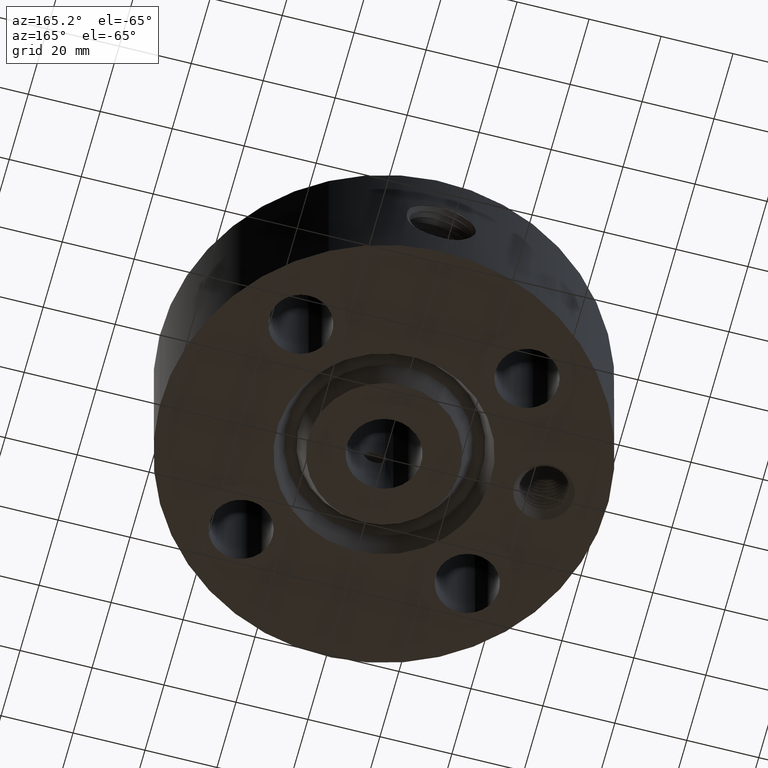
[diagram: clean part render]
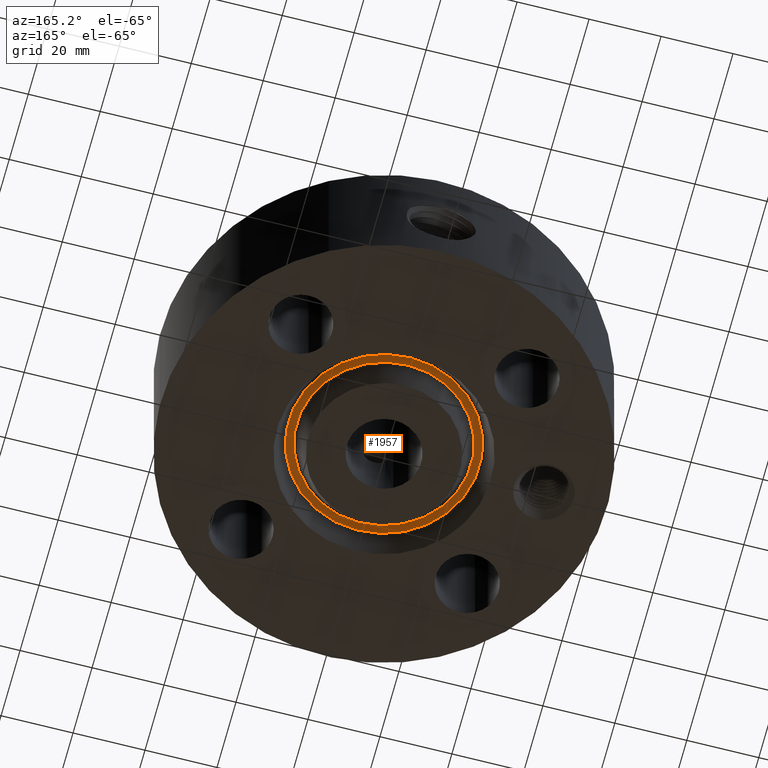
[diagram: same view with one face highlighted and labeled with its STEP entity id]
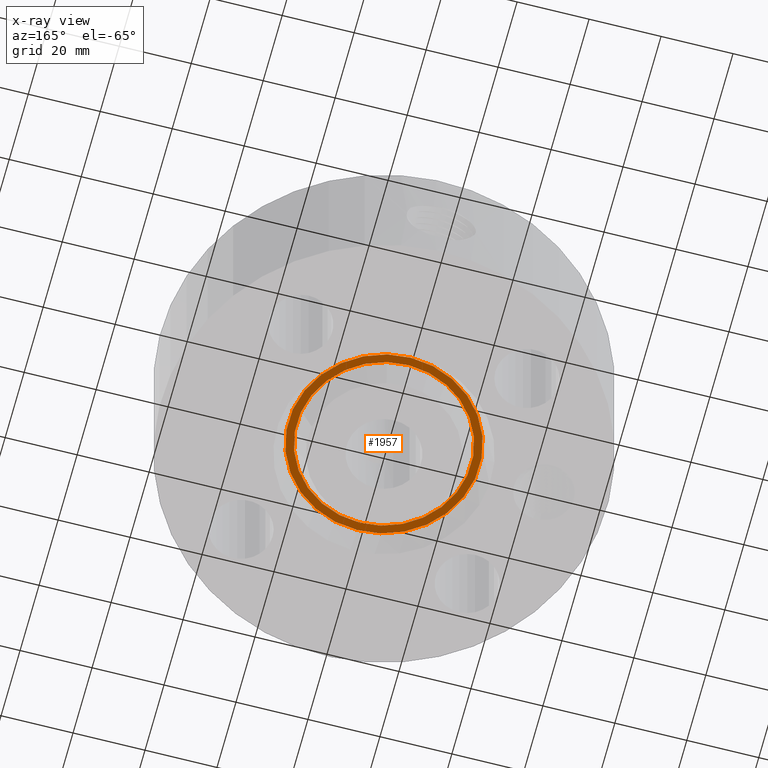
[diagram: x-ray of the same camera — body ghosted, the highlighted face saturated]
A machine part, auxiliary view. The second image highlights one B-rep face of the part: STEP entity #1957.
The next image is the same camera in x-ray: the body ghosted, the highlighted face saturated — about 0% of this face is hidden behind the body in this view.
In plain terms, the highlighted planar face has unit normal (0, 0, 1).
Its self-contained STEP definition (entity closure, byte-faithful):
#1437=AXIS2_PLACEMENT_3D('Circle Axis2P3D',#1435,#1436,$) ;
#1463=AXIS2_PLACEMENT_3D('Circle Axis2P3D',#1461,#1462,$) ;
#1933=AXIS2_PLACEMENT_3D('Plane Axis2P3D',#1930,#1931,#1932) ;
#1937=AXIS2_PLACEMENT_3D('Circle Axis2P3D',#1935,#1936,$) ;
#1946=AXIS2_PLACEMENT_3D('Circle Axis2P3D',#1944,#1945,$) ;
#1435=CARTESIAN_POINT('Axis2P3D Location',(0.,0.,0.250000000001)) ;
#1439=CARTESIAN_POINT('Vertex',(0.457677432904,-0.837772921436,0.250000000001)) ;
#1441=CARTESIAN_POINT('Vertex',(-0.457677432904,0.837772921436,0.250000000001)) ;
#1461=CARTESIAN_POINT('Axis2P3D Location',(0.,0.,0.250000000001)) ;
#1930=CARTESIAN_POINT('Axis2P3D Location',(0.,0.954637156453,0.250000000001)) ;
#1935=CARTESIAN_POINT('Axis2P3D Location',(0.,0.,0.250000000001)) ;
#1939=CARTESIAN_POINT('Vertex',(-0.501173644308,0.917392202352,0.250000000001)) ;
#1941=CARTESIAN_POINT('Vertex',(0.501173644308,-0.917392202352,0.250000000001)) ;
#1944=CARTESIAN_POINT('Axis2P3D Location',(0.,0.,0.250000000001)) ;
#1436=DIRECTION('Axis2P3D Direction',(0.,0.,0.0393700787402)) ;
#1462=DIRECTION('Axis2P3D Direction',(0.,0.,0.0393700787402)) ;
#1931=DIRECTION('Axis2P3D Direction',(0.,0.,0.0393700787402)) ;
#1932=DIRECTION('Axis2P3D XDirection',(0.0393700787402,0.,0.)) ;
#1936=DIRECTION('Axis2P3D Direction',(0.,0.,0.0393700787402)) ;
#1945=DIRECTION('Axis2P3D Direction',(0.,0.,0.0393700787402)) ;
#1950=ORIENTED_EDGE('',*,*,#1943,.F.) ;
#1951=ORIENTED_EDGE('',*,*,#1948,.F.) ;
#1954=ORIENTED_EDGE('',*,*,#1443,.T.) ;
#1955=ORIENTED_EDGE('',*,*,#1465,.T.) ;
#1956=FACE_BOUND('',#1953,.T.) ;
#1957=ADVANCED_FACE('PartBody',(#1952,#1956),#1934,.F.) ;
#1438=CIRCLE('generated circle',#1437,0.954637156453) ;
#1464=CIRCLE('generated circle',#1463,0.954637156453) ;
#1938=CIRCLE('generated circle',#1937,1.04536284355) ;
#1947=CIRCLE('generated circle',#1946,1.04536284355) ;
#1443=EDGE_CURVE('',#1440,#1442,#1438,.T.) ;
#1465=EDGE_CURVE('',#1442,#1440,#1464,.T.) ;
#1943=EDGE_CURVE('',#1940,#1942,#1938,.T.) ;
#1948=EDGE_CURVE('',#1942,#1940,#1947,.T.) ;
#1949=EDGE_LOOP('',(#1950,#1951)) ;
#1953=EDGE_LOOP('',(#1954,#1955)) ;
#1952=FACE_OUTER_BOUND('',#1949,.T.) ;
#1934=PLANE('',#1933) ;
#1440=VERTEX_POINT('',#1439) ;
#1442=VERTEX_POINT('',#1441) ;
#1940=VERTEX_POINT('',#1939) ;
#1942=VERTEX_POINT('',#1941) ;